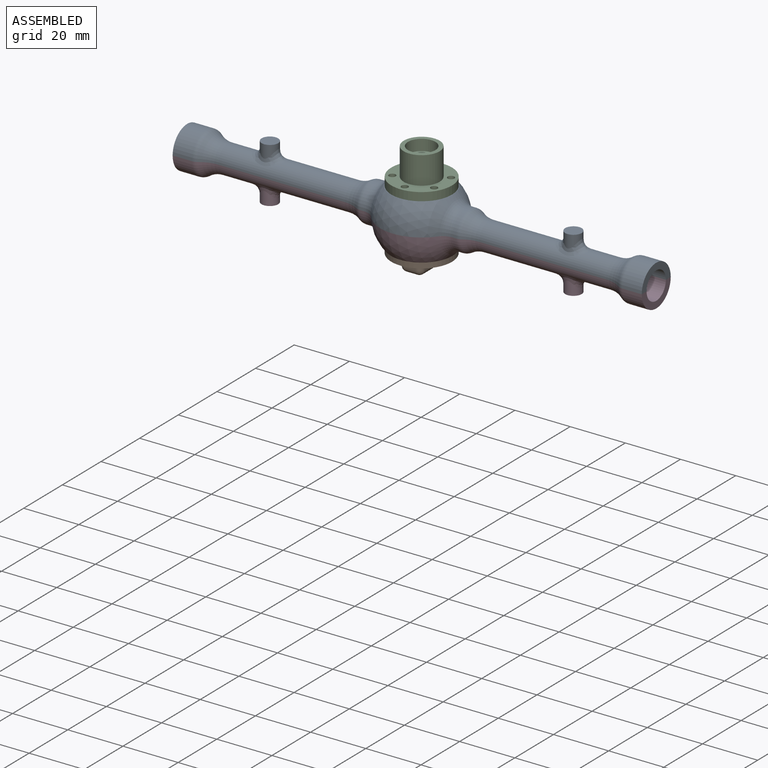
[diagram: assembled view]
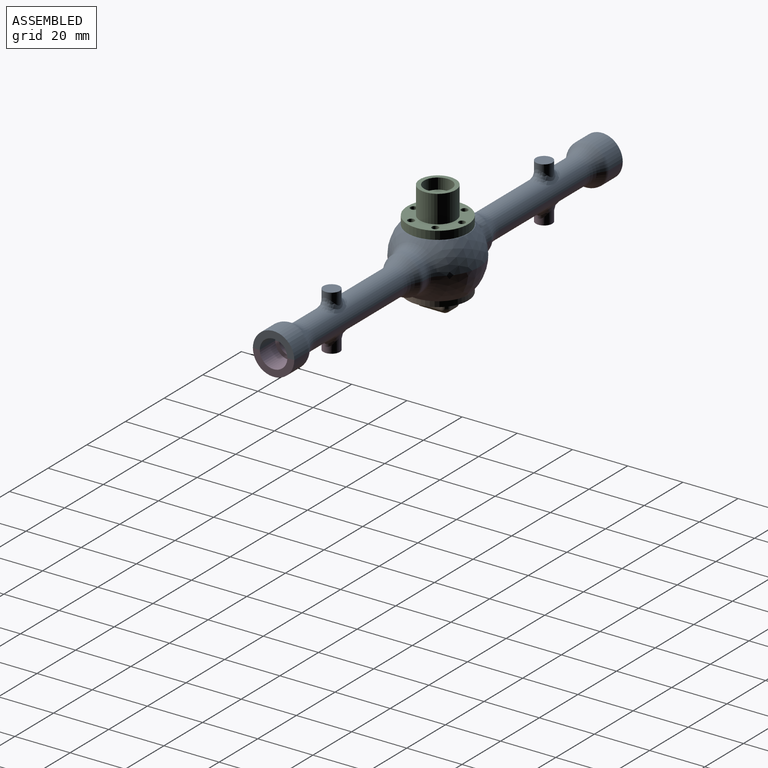
[diagram: assembled view, second angle]
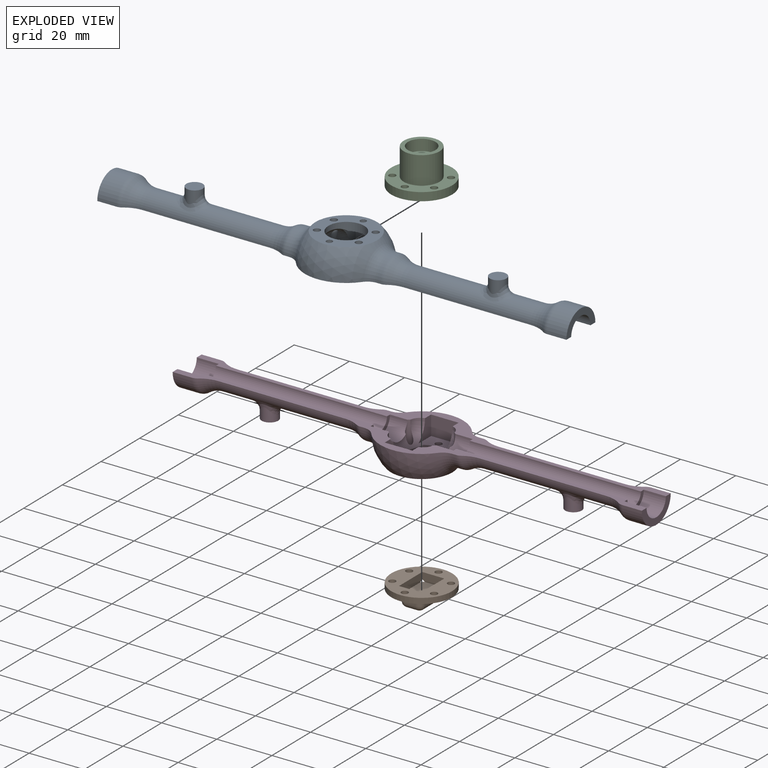
[diagram: exploded view]
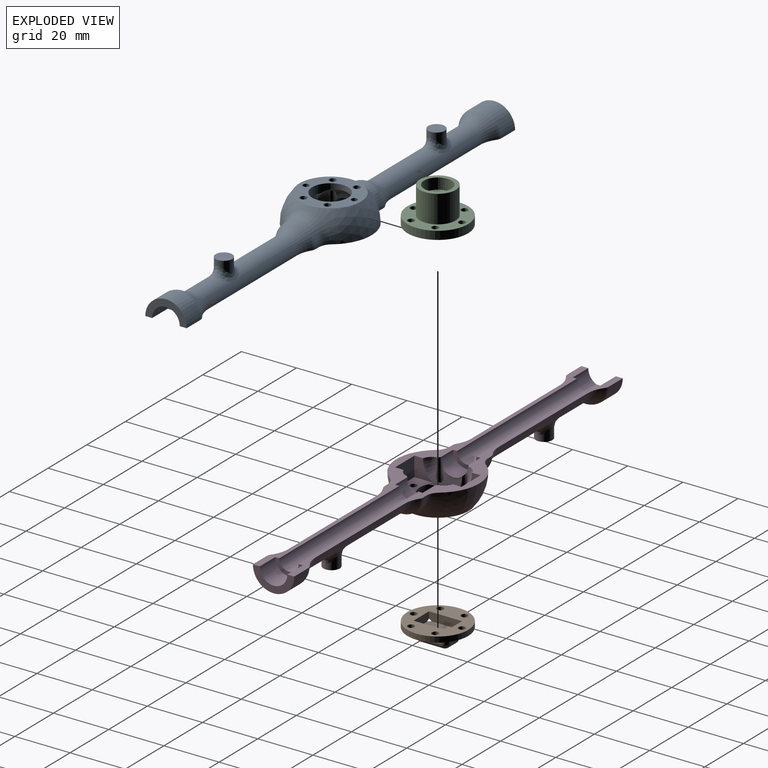
[diagram: exploded view, second angle]
ASSEMBLY  parts=4 mates=3
PART A: 61 faces, bbox 170.1x30.1x15.1 mm
  f0: cylinder r=9mm len=0.8mm, axis (1,0,0), area 0.3mm2, adj f5,f9,f53
  f1: cylinder r=9mm len=0.8mm, axis (1,0,0), area 0.3mm2, adj f2,f5,f53
  f2: torus R=5mm, axis (1,0,0), area 88.6mm2, adj f1,f3,f5,f10,f11,f12,f48,f49
  f3: cylinder r=9mm len=0.8mm, axis (1,0,0), area 0.3mm2, adj f2,f5,f59
  f4: cylinder r=9mm len=0.8mm, axis (1,0,0), area 0.3mm2, adj f5,f9,f59
  f5: cylinder r=6.5mm len=13mm, axis (0,0,1), area 99mm2, adj f0,f1,f2,f3,f4,f9,f44,f53
  f6: cylinder r=1.22mm len=2.93mm, axis (0,0,1), area 22.4mm2, adj f47,f59
  f7: cylinder r=1.22mm len=2.93mm, axis (0,0,1), area 22.4mm2, adj f50,f53
  f8: cylinder r=5mm len=10mm, axis (-1,0,0), area 104.2mm2, adj f9,f10,f11,f30,f51,f52
  f9: torus R=5mm, axis (-1,0,0), area 88.6mm2, adj f0,f4,f5,f8,f10,f11,f51,f52
  f10: plane 170x11.5mm, normal (0,0,1), area 383.4mm2, adj f2,f8,f9,f12,f13,f14,f15,f16
  f11: plane 170x11.5mm, normal (0,0,1), area 383.4mm2, adj f2,f8,f9,f12,f13,f14,f15,f16
  f12: cylinder r=5mm len=10mm, axis (1,0,0), area 104.2mm2, adj f2,f10,f11,f19,f48,f49
  f13: cylinder r=3.5mm len=62mm, axis (1,0,0), area 681.7mm2, adj f10,f11,f19,f21
  f14: plane 15x7.5mm, normal (-1,0,0), area 49.1mm2, adj f10,f11,f18,f20
  f15: sphere r=15mm, area 659.7mm2, adj f10,f11,f24,f35,f44
  f16: cylinder r=7mm len=14mm, axis (-1,0,0), area 31.6mm2, adj f10,f11,f22,f24
  f17: cylinder r=5mm len=45.93mm, axis (-1,0,0), area 644.1mm2, adj f10,f11,f41,f42,f45
  f18: cylinder r=7.5mm len=15mm, axis (-1,0,0), area 165.9mm2, adj f10,f11,f14,f23
  f19: plane 10x5mm, normal (1,0,0), area 20mm2, adj f10,f11,f12,f13
  f20: cylinder r=5mm len=10mm, axis (-1,0,0), area 125.7mm2, adj f10,f11,f14,f21
  f21: plane 10x5mm, normal (-1,0,0), area 20mm2, adj f10,f11,f13,f20
  f22: torus R=4mm, axis (-1,0,0), area 36.3mm2, adj f10,f11,f16,f42
  f23: torus R=4.5mm, axis (1,0,0), area 43.4mm2, adj f10,f11,f18,f45
  f24: torus R=12mm, axis (1,0,0), area 112mm2, adj f10,f11,f15,f16
  f25: cylinder r=3.5mm len=62mm, axis (-1,0,0), area 681.7mm2, adj f10,f11,f30,f32
  f26: plane 15x7.5mm, normal (1,0,0), area 49.1mm2, adj f10,f11,f29,f31
  f27: cylinder r=7mm len=14mm, axis (1,0,0), area 31.6mm2, adj f10,f11,f33,f35
  f28: cylinder r=5mm len=45.93mm, axis (1,0,0), area 644.3mm2, adj f10,f11,f40,f43,f46
  f29: cylinder r=7.5mm len=15mm, axis (1,0,0), area 165.9mm2, adj f10,f11,f26,f34
  f30: plane 10x5mm, normal (-1,0,0), area 20mm2, adj f8,f10,f11,f25
  f31: cylinder r=5mm len=10mm, axis (1,0,0), area 125.7mm2, adj f10,f11,f26,f32
  f32: plane 10x5mm, normal (1,0,0), area 20mm2, adj f10,f11,f25,f31
  f33: torus R=4mm, axis (1,0,0), area 36.3mm2, adj f10,f11,f27,f43
  f34: torus R=4.5mm, axis (-1,0,0), area 43.4mm2, adj f10,f11,f29,f46
  f35: torus R=12mm, axis (-1,0,0), area 112mm2, adj f10,f11,f15,f27
  f36: plane 6x6mm, normal (0,0,-1), area 28.3mm2, adj f37
  f37: cylinder r=3mm len=6mm, axis (0,0,1), area 62mm2, adj f36,f41
  f38: plane 6x6mm, normal (0,0,-1), area 28.3mm2, adj f39
  f39: cylinder r=3mm len=6mm, axis (0,0,1), area 62mm2, adj f38,f40
  f40: bspline ~12.01x7.51mm, area 81.8mm2, adj f28,f39
  f41: bspline ~12.01x7.51mm, area 81.8mm2, adj f17,f37
  f42: torus R=15mm, axis (-1,0,0), area 97.4mm2, adj f10,f11,f17,f22
  f43: torus R=15mm, axis (-1,0,0), area 97.4mm2, adj f10,f11,f28,f33
  f44: plane 22.36x22.36mm, normal (0,0,-1), area 233.7mm2, adj f5,f15,f47,f48,f49,f50,f51,f52
  f45: torus R=15mm, axis (-1,0,0), area 111.9mm2, adj f10,f11,f17,f23
  f46: torus R=15mm, axis (-1,0,0), area 111.9mm2, adj f10,f11,f28,f34
  f47: cone r=0mm half-angle=59deg, axis (0,0,1), area 1mm2, adj f6,f44
  f48: cylinder r=1.22mm len=10mm, axis (0,0,1), area 42.9mm2, adj f2,f10,f12,f44
  f49: cylinder r=1.22mm len=10mm, axis (0,0,1), area 42.9mm2, adj f2,f11,f12,f44
  f50: cone r=0mm half-angle=59deg, axis (0,0,1), area 1mm2, adj f7,f44
  f51: cylinder r=1.22mm len=10mm, axis (0,0,1), area 42.9mm2, adj f8,f9,f11,f44
  f52: cylinder r=1.22mm len=10mm, axis (0,0,1), area 42.9mm2, adj f8,f9,f10,f44
  f53: plane 10.08x6.63mm, normal (0,0,1), area 55.2mm2, adj f0,f1,f2,f5,f7,f9,f54,f55
  f54: plane 7x6.55mm, normal (1,0,0), area 29.1mm2, adj f2,f11,f53,f55
  f55: plane 10x7mm, normal (0,1,0), area 70mm2, adj f11,f53,f54,f56
  f56: plane 7x6.55mm, normal (-1,0,0), area 29.1mm2, adj f9,f11,f53,f55
  f57: plane 7x6.55mm, normal (-1,0,0), area 29.1mm2, adj f9,f10,f59,f60
  f58: plane 7x6.55mm, normal (1,0,0), area 29.1mm2, adj f2,f10,f59,f60
  f59: plane 10.08x6.63mm, normal (0,0,1), area 55.2mm2, adj f2,f3,f4,f5,f6,f9,f57,f58
  f60: plane 10x7mm, normal (0,-1,0), area 70mm2, adj f10,f57,f58,f59
PART B: 43 faces, bbox 22.1x22.1x7.1 mm
  f0: torus R=4mm, axis (0,0,1), area 12.9mm2, adj f1,f26,f27,f34,f39,f41,f42
  f1: plane 22x22mm, normal (0,0,-1), area 175.1mm2, adj f0,f2,f4,f5,f6,f7,f8,f9
  f2: cylinder r=11mm len=22mm, axis (0,0,-1), area 138.2mm2, adj f1,f3
  f3: plane 22x22mm, normal (0,0,1), area 256.1mm2, adj f2,f4,f5,f6,f7,f8,f9,f38
  f4: cylinder r=1.22mm len=2.44mm, axis (0,0,-1), area 15.3mm2, adj f1,f3,f30
  f5: cylinder r=1.22mm len=2.44mm, axis (0,0,-1), area 15.3mm2, adj f1,f3
  f6: cylinder r=1.22mm len=2.44mm, axis (0,0,-1), area 15.3mm2, adj f1,f3
  f7: cylinder r=1.22mm len=2.44mm, axis (0,0,-1), area 15.3mm2, adj f1,f3
  f8: cylinder r=1.22mm len=2.44mm, axis (0,0,-1), area 15.3mm2, adj f1,f3,f21
  f9: cylinder r=1.22mm len=2.44mm, axis (0,0,-1), area 15.3mm2, adj f1,f3
  f10: plane 8x1mm, normal (1,0,0), area 8mm2, adj f27,f31,f34,f37
  f11: plane 4x1.06mm, normal (0,-1,0), area 4.1mm2, adj f24,f25,f30,f32,f33,f37
  f12: plane 8x1mm, normal (-1,0,0), area 8mm2, adj f16,f17,f23,f24
  f13: plane 4x1.06mm, normal (0,1,0), area 4.1mm2, adj f16,f18,f21,f22,f26,f27
  f14: plane 8x4mm, normal (0,0,-1), area 32mm2, adj f22,f23,f31,f32
  f15: torus R=4mm, axis (0,0,1), area 12.9mm2, adj f1,f16,f17,f18,f38,f39,f42
  f16: cylinder r=2mm len=2mm, axis (0,0,1), area 3.1mm2, adj f12,f13,f15,f19
  f17: cylinder r=2mm len=8mm, axis (0,-1,0), area 25.1mm2, adj f1,f12,f15,f20
  f18: cylinder r=2mm len=2mm, axis (-1,0,0), area 3.3mm2, adj f1,f13,f15,f21
  f19: sphere r=2mm, area 6.3mm2, adj f16,f22,f23
  f20: torus R=4mm, axis (0,0,1), area 12.9mm2, adj f1,f17,f24,f25,f38,f40,f42
  f21: bspline ~2x2mm, area 5.4mm2, adj f8,f13,f18,f26
  f22: cylinder r=2mm len=4mm, axis (-1,0,0), area 12.6mm2, adj f13,f14,f19,f28
  f23: cylinder r=2mm len=8mm, axis (0,-1,0), area 25.1mm2, adj f12,f14,f19,f29
  f24: cylinder r=2mm len=2mm, axis (0,0,-1), area 3.1mm2, adj f11,f12,f20,f29
  f25: cylinder r=2mm len=2mm, axis (1,0,0), area 3.3mm2, adj f1,f11,f20,f30
  f26: cylinder r=2mm len=2mm, axis (-1,0,0), area 3.3mm2, adj f0,f1,f13,f21
  f27: cylinder r=2mm len=2mm, axis (0,0,-1), area 3.1mm2, adj f0,f10,f13,f28
  f28: sphere r=2mm, area 6.3mm2, adj f22,f27,f31
  f29: sphere r=2mm, area 6.3mm2, adj f23,f24,f32
  f30: bspline ~2x2mm, area 5.4mm2, adj f4,f11,f25,f33
  f31: cylinder r=2mm len=8mm, axis (0,1,0), area 25.1mm2, adj f10,f14,f28,f35
  f32: cylinder r=2mm len=4mm, axis (1,0,0), area 12.6mm2, adj f11,f14,f29,f35
  f33: cylinder r=2mm len=2mm, axis (1,0,0), area 3.3mm2, adj f1,f11,f30,f36
  f34: cylinder r=2mm len=8mm, axis (0,1,0), area 25.1mm2, adj f0,f1,f10,f36
  f35: sphere r=2mm, area 6.3mm2, adj f31,f32,f37
  f36: torus R=4mm, axis (0,0,1), area 12.9mm2, adj f1,f33,f34,f37,f40,f41,f42
  f37: cylinder r=2mm len=2mm, axis (0,0,1), area 3.1mm2, adj f10,f11,f35,f36
  f38: plane 12.06x3.06mm, normal (1,0,0), area 35.4mm2, adj f3,f15,f20,f39,f40,f42
  f39: plane 8.06x3.06mm, normal (0,-1,0), area 23.4mm2, adj f0,f3,f15,f38,f41,f42
  f40: plane 8.06x3.06mm, normal (0,1,0), area 23.4mm2, adj f3,f20,f36,f38,f41,f42
  f41: plane 12.06x3.06mm, normal (-1,0,0), area 35.4mm2, adj f0,f3,f36,f39,f40,f42
  f42: plane 12x8mm, normal (0,0,1), area 94.6mm2, adj f0,f15,f20,f36,f38,f39,f40,f41
PART C: 18 faces, bbox 22x22x14 mm
  f0: cylinder r=3mm len=6mm, axis (0,0,-1), area 113.1mm2, adj f13,f16
  f1: cylinder r=11mm len=22mm, axis (0,0,-1), area 207.3mm2, adj f2,f3
  f2: plane 22x22mm, normal (0,0,1), area 219.4mm2, adj f1,f4,f5,f6,f7,f8,f9,f10
  f3: plane 22x22mm, normal (0,0,-1), area 223.4mm2, adj f1,f4,f5,f6,f7,f8,f9,f15
  f4: cylinder r=1.22mm len=3mm, axis (0,0,1), area 23mm2, adj f2,f3
  f5: cylinder r=1.22mm len=3mm, axis (0,0,1), area 23mm2, adj f2,f3
  f6: cylinder r=1.22mm len=3mm, axis (0,0,1), area 23mm2, adj f2,f3
  f7: cylinder r=1.22mm len=3mm, axis (0,0,1), area 23mm2, adj f2,f3
  f8: cylinder r=1.22mm len=3mm, axis (0,0,1), area 23mm2, adj f2,f3
  f9: cylinder r=1.22mm len=3mm, axis (0,0,1), area 23mm2, adj f2,f3
  f10: cylinder r=6.5mm len=13mm, axis (0,0,-1), area 408.4mm2, adj f2,f11
  f11: plane 13x13mm, normal (0,0,1), area 54.2mm2, adj f10,f12
  f12: cylinder r=5mm len=10mm, axis (0,0,1), area 125.7mm2, adj f11,f13
  f13: plane 10x10mm, normal (0,0,1), area 50.3mm2, adj f0,f12
  f14: plane 12.8x12.8mm, normal (0,0,-1), area 78.4mm2, adj f15,f17
  f15: cylinder r=6.4mm len=12.8mm, axis (0,0,1), area 40.2mm2, adj f3,f14
  f16: plane 8x8mm, normal (0,0,-1), area 22mm2, adj f0,f17
  f17: cylinder r=4mm len=8mm, axis (0,0,-1), area 100.5mm2, adj f14,f16
PART D: same geometry as A
PLACE A rot(axis=(1,0,0),180deg) t=(-101.5,28.2,20)mm
PLACE B rot(axis=(-1,0,0),0deg) t=(-31.04,85.93,8)mm
PLACE C t=(-101.5,28.2,30)mm
PLACE D rot(axis=(-1,0,0),0deg) t=(-101.5,28.2,20)mm
MATE fastened D.f11 <-> A.f10  axis (0,0,1) through (-118.94,21.2,20)mm
MATE fastened C.f0 <-> A.f5  axis (0,0,-1) through (-101.5,28.2,30)mm
MATE fastened B.f8 <-> D.f6  axis (0,0,1) through (-101.5,36.95,10)mm
